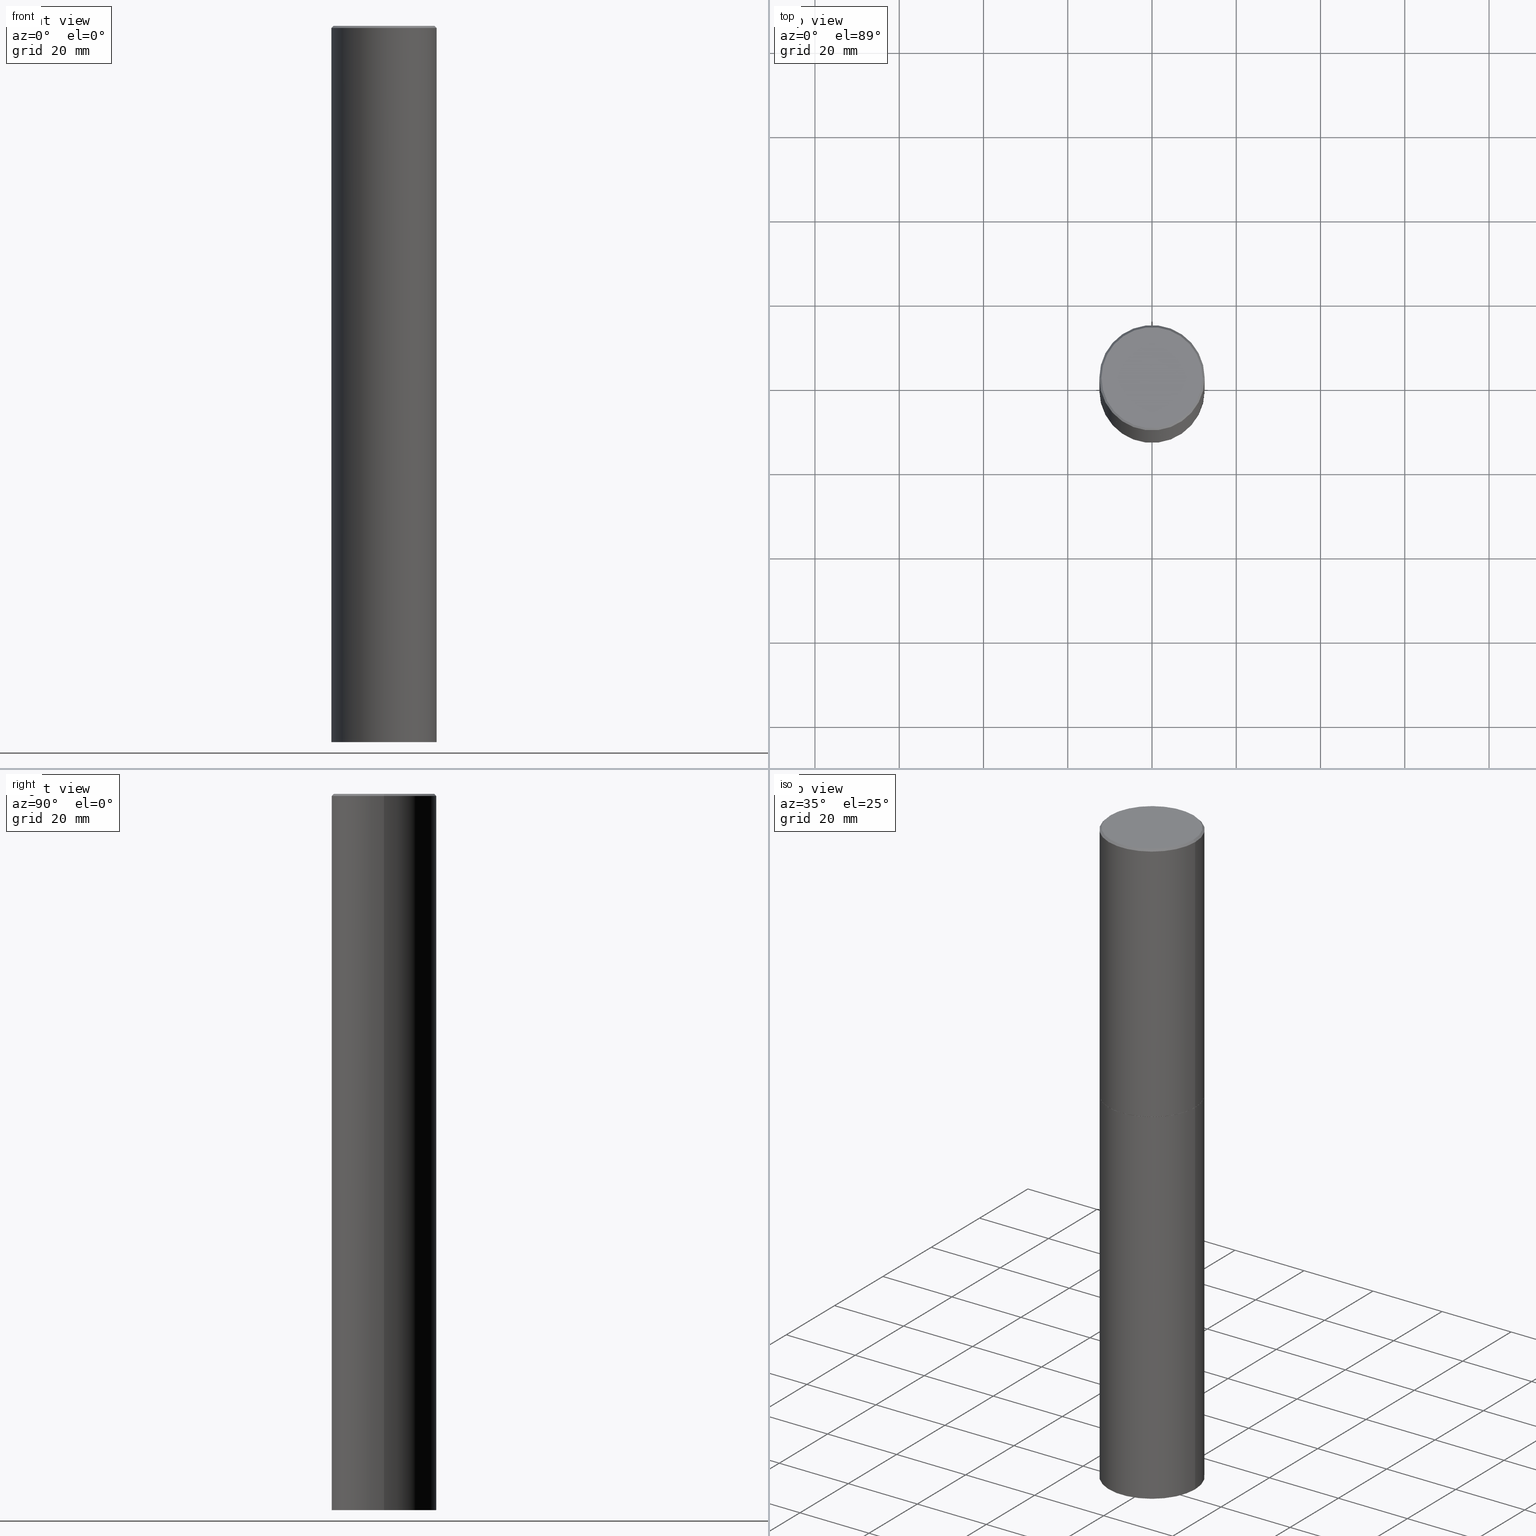
[diagram: canonical four-view strip — front | top / right | iso, engineering-drawing reading convention]
A machine part, canonical four-view strip (front | top / right | iso — engineering-drawing reading convention). The complete STEP part file that produces these views, byte-faithful:
ISO-10303-21;
HEADER;
FILE_DESCRIPTION (( 'STEP AP203' ),
    '1' );
FILE_NAME ('74585.STEP',
    '2024-02-29T13:36:46',
    ( '' ),
    ( '' ),
    'SwSTEP 2.0',
    'SolidWorks 2023',
    '' );
FILE_SCHEMA (( 'CONFIG_CONTROL_DESIGN' ));
ENDSEC;

DATA;
#1 = ADVANCED_FACE ( 'NONE', ( #126 ), #303, .F. ) ;
#2 = DIRECTION ( 'NONE',  ( 1.000000000000000000, -6.982962677686264344E-15, 0.000000000000000000 ) ) ;
#3 = DIRECTION ( 'NONE',  ( 1.000000000000000000, -6.982962677686265922E-15, 4.876176775795936353E-29 ) ) ;
#4 = CARTESIAN_POINT ( 'NONE',  ( -0.4921499999999997543, 3.496936074043331319E-15, -2.420853904668950668E-29 ) ) ;
#5 = EDGE_CURVE ( 'NONE', #61, #298, #357, .T. ) ;
#6 = VECTOR ( 'NONE', #168, 39.37007874015748143 ) ;
#7 = SECURITY_CLASSIFICATION ( '', '', #81 ) ;
#8 = ORIENTED_EDGE ( 'NONE', *, *, #349, .F. ) ;
#9 = CLOSED_SHELL ( 'NONE', ( #77, #251, #157, #356, #302, #65, #113, #250 ) ) ;
#10 = ORIENTED_EDGE ( 'NONE', *, *, #201, .T. ) ;
#11 = CARTESIAN_POINT ( 'NONE',  ( 0.000000000000000000, 0.000000000000000000, 0.000000000000000000 ) ) ;
#12 = ORIENTED_EDGE ( 'NONE', *, *, #275, .T. ) ;
#13 = PRODUCT_DEFINITION ( 'UNKNOWN', '', #42, #60 ) ;
#14 = EDGE_CURVE ( 'NONE', #322, #117, #129, .T. ) ;
#15 = COORDINATED_UNIVERSAL_TIME_OFFSET ( 5, 0, .BEHIND. ) ;
#16 = ORIENTED_EDGE ( 'NONE', *, *, #143, .F. ) ;
#17 = PERSON_AND_ORGANIZATION ( #196, #161 ) ;
#18 = AXIS2_PLACEMENT_3D ( 'NONE', #28, #308, #20 ) ;
#19 = APPLICATION_CONTEXT ( 'configuration controlled 3d designs of mechanical parts and assemblies' ) ;
#20 = DIRECTION ( 'NONE',  ( -1.000000000000000000, 6.982962677686266711E-15, 0.000000000000000000 ) ) ;
#21 = EDGE_CURVE ( 'NONE', #117, #298, #294, .T. ) ;
#22 = DIRECTION ( 'NONE',  ( 1.000000000000000000, -6.982962677686264344E-15, 0.000000000000000000 ) ) ;
#23 = VECTOR ( 'NONE', #312, 39.37007874015748143 ) ;
#24 = CC_DESIGN_APPROVAL ( #271, ( #7 ) ) ;
#25 = DIRECTION ( 'NONE',  ( -2.445468806185136597E-29, 3.491481338843145583E-15, 1.000000000000000000 ) ) ;
#26 = DIRECTION ( 'NONE',  ( -0.7071067811866199593, 7.493145998870616062E-15, 0.7071067811864750752 ) ) ;
#27 = EDGE_CURVE ( 'NONE', #348, #292, #134, .T. ) ;
#28 = CARTESIAN_POINT ( 'NONE',  ( 4.890937612370296805E-31, -6.982962677686323656E-17, -0.02000000000000009409 ) ) ;
#29 = CONICAL_SURFACE ( 'NONE', #18, 0.4921499999999995323, 0.7853981633974456145 ) ;
#30 = MECHANICAL_CONTEXT ( 'NONE', #212, 'mechanical' ) ;
#31 = DATE_TIME_ROLE ( 'classification_date' ) ;
#32 =( CONVERSION_BASED_UNIT ( 'INCH', #263 ) LENGTH_UNIT ( ) NAMED_UNIT ( #243 ) );
#33 = EDGE_CURVE ( 'NONE', #70, #236, #191, .T. ) ;
#34 = APPLICATION_PROTOCOL_DEFINITION ( 'international standard', 'config_control_design', 1994, #19 ) ;
#35 = ORIENTED_EDGE ( 'NONE', *, *, #275, .F. ) ;
#36 = CARTESIAN_POINT ( 'NONE',  ( -2.087702828670439639E-46, 2.980686340760894400E-32, 8.537024980200822558E-18 ) ) ;
#37 = EDGE_LOOP ( 'NONE', ( #64, #205, #176, #351 ) ) ;
#38 = DIRECTION ( 'NONE',  ( -2.445468806185136597E-29, 3.491481338843145583E-15, 1.000000000000000000 ) ) ;
#39 = ORIENTED_EDGE ( 'NONE', *, *, #349, .T. ) ;
#40 = ORIENTED_EDGE ( 'NONE', *, *, #27, .F. ) ;
#41 = AXIS2_PLACEMENT_3D ( 'NONE', #85, #56, #340 ) ;
#42 = PRODUCT_DEFINITION_FORMATION_WITH_SPECIFIED_SOURCE ( 'ANY', '', #197, .NOT_KNOWN. ) ;
#43 = ORIENTED_EDGE ( 'NONE', *, *, #93, .T. ) ;
#44 = DATE_AND_TIME ( #120, #346 ) ;
#45 = CARTESIAN_POINT ( 'NONE',  ( -0.4921499999999995323, 3.366835455046429323E-15, -0.02000000000000009409 ) ) ;
#46 = DATE_AND_TIME ( #305, #136 ) ;
#47 = DIRECTION ( 'NONE',  ( -2.445468806185136597E-29, 3.491481338843145583E-15, 1.000000000000000000 ) ) ;
#48 = AXIS2_PLACEMENT_3D ( 'NONE', #306, #47, #162 ) ;
#49 = PLANE ( 'NONE',  #189 ) ;
#50 = ADVANCED_FACE ( 'NONE', ( #330 ), #72, .T. ) ;
#51 = DIRECTION ( 'NONE',  ( 1.000000000000000000, -6.982962677686265922E-15, 4.876176775795935793E-29 ) ) ;
#52 = PERSON_AND_ORGANIZATION_ROLE ( 'classification_officer' ) ;
#53 = DIRECTION ( 'NONE',  ( -1.000000000000000000, 6.982962677686265922E-15, -4.876176775795935793E-29 ) ) ;
#54 = VECTOR ( 'NONE', #71, 39.37007874015748854 ) ;
#55 = CIRCLE ( 'NONE', #354, 0.4921499999999999764 ) ;
#56 = DIRECTION ( 'NONE',  ( -2.445468806185136597E-29, 3.491481338843145583E-15, 1.000000000000000000 ) ) ;
#57 = LINE ( 'NONE', #194, #339 ) ;
#58 =( NAMED_UNIT ( * ) SI_UNIT ( $, .STERADIAN. ) SOLID_ANGLE_UNIT ( ) );
#59 = ORIENTED_EDGE ( 'NONE', *, *, #268, .F. ) ;
#60 = DESIGN_CONTEXT ( 'detailed design', #19, 'design' ) ;
#61 = VERTEX_POINT ( 'NONE', #249 ) ;
#62 = ORIENTED_EDGE ( 'NONE', *, *, #341, .F. ) ;
#63 = CARTESIAN_POINT ( 'NONE',  ( 0.000000000000000000, 0.000000000000000000, 0.000000000000000000 ) ) ;
#64 = ORIENTED_EDGE ( 'NONE', *, *, #80, .T. ) ;
#65 = ADVANCED_FACE ( 'NONE', ( #211 ), #345, .T. ) ;
#66 = CARTESIAN_POINT ( 'NONE',  ( -0.4921499999999999764, -1.299821836318722399E-14, -2.755900000000000016 ) ) ;
#67 = CARTESIAN_POINT ( 'NONE',  ( 6.739467482965618232E-29, -9.622173421717824390E-15, -2.755900000000000016 ) ) ;
#68 = VECTOR ( 'NONE', #26, 39.37007874015748143 ) ;
#69 = CIRCLE ( 'NONE', #285, 0.4721499999999995700 ) ;
#70 = VERTEX_POINT ( 'NONE', #66 ) ;
#71 = DIRECTION ( 'NONE',  ( 0.7071067811865454633, -7.319954787623246579E-15, -0.7071067811865493491 ) ) ;
#72 = CYLINDRICAL_SURFACE ( 'NONE', #48, 0.4921499999999999764 ) ;
#73 = AXIS2_PLACEMENT_3D ( 'NONE', #199, #202, #132 ) ;
#74 = APPROVAL ( #102, 'UNSPECIFIED' ) ;
#75 = FACE_OUTER_BOUND ( 'NONE', #320, .T. ) ;
#76 = CC_DESIGN_APPROVAL ( #74, ( #13 ) ) ;
#77 = ADVANCED_FACE ( 'NONE', ( #179 ), #245, .T. ) ;
#78 = CARTESIAN_POINT ( 'NONE',  ( 4.890937612370296805E-31, -6.982962677686323656E-17, -0.02000000000000009409 ) ) ;
#79 = LINE ( 'NONE', #195, #68 ) ;
#80 = EDGE_CURVE ( 'NONE', #115, #216, #360, .T. ) ;
#81 = SECURITY_CLASSIFICATION_LEVEL ( 'unclassified' ) ;
#82 = CARTESIAN_POINT ( 'NONE',  ( 6.739467482965618232E-29, -9.622173421717824390E-15, -2.755900000000000016 ) ) ;
#83 = CIRCLE ( 'NONE', #73, 0.4921499999999999764 ) ;
#84 = CIRCLE ( 'NONE', #149, 0.4911499999999999755 ) ;
#85 = CARTESIAN_POINT ( 'NONE',  ( 6.737022014159432629E-29, -9.618681940378981383E-15, -2.754900000000000126 ) ) ;
#86 = CARTESIAN_POINT ( 'NONE',  ( -0.4921499999999995323, 3.366835455046429323E-15, -0.02000000000000009409 ) ) ;
#87 = MANIFOLD_SOLID_BREP ( 'Body-Move/Copy2[1]', #300 ) ;
#88 = EDGE_LOOP ( 'NONE', ( #232, #10, #119, #273 ) ) ;
#89 = LOCAL_TIME ( 8, 36, 46.00000000000000000, #364 ) ;
#90 =( LENGTH_UNIT ( ) NAMED_UNIT ( * ) SI_UNIT ( $, .METRE. ) );
#91 = DIRECTION ( 'NONE',  ( -2.445468806185136597E-29, 3.491481338843145583E-15, 1.000000000000000000 ) ) ;
#92 = ORIENTED_EDGE ( 'NONE', *, *, #33, .T. ) ;
#93 = EDGE_CURVE ( 'NONE', #236, #70, #83, .T. ) ;
#94 = CARTESIAN_POINT ( 'NONE',  ( 4.890937612370296805E-31, -6.982962677686323656E-17, -0.02000000000000009409 ) ) ;
#95 = PERSON_AND_ORGANIZATION ( #196, #161 ) ;
#96 = EDGE_LOOP ( 'NONE', ( #327, #12, #264, #16 ) ) ;
#97 = CARTESIAN_POINT ( 'NONE',  ( 0.4921499999999995323, -3.446223716380119588E-15, -0.02000000000000009409 ) ) ;
#98 = DATE_TIME_ROLE ( 'creation_date' ) ;
#99 = EDGE_LOOP ( 'NONE', ( #269, #39, #344, #178 ) ) ;
#100 = EDGE_CURVE ( 'NONE', #216, #298, #365, .T. ) ;
#101 = AXIS2_PLACEMENT_3D ( 'NONE', #103, #304, #222 ) ;
#102 = APPROVAL_STATUS ( 'not_yet_approved' ) ;
#103 = CARTESIAN_POINT ( 'NONE',  ( 6.739467482965618232E-29, -9.622173421717824390E-15, -2.755900000000000016 ) ) ;
#104 = APPROVAL ( #123, 'UNSPECIFIED' ) ;
#105 = FACE_OUTER_BOUND ( 'NONE', #174, .T. ) ;
#106 = FACE_OUTER_BOUND ( 'NONE', #121, .T. ) ;
#107 = CARTESIAN_POINT ( 'NONE',  ( 0.4921499999999995323, -3.446223716380119588E-15, -0.02000000000000009409 ) ) ;
#108 = DIRECTION ( 'NONE',  ( 0.7071067811866199593, -2.468850131083015945E-15, 0.7071067811864750752 ) ) ;
#109 = DIRECTION ( 'NONE',  ( -1.000000000000000000, 6.982962677686265922E-15, -4.876176775795935793E-29 ) ) ;
#110 = AXIS2_PLACEMENT_3D ( 'NONE', #220, #244, #359 ) ;
#111 = AXIS2_PLACEMENT_3D ( 'NONE', #63, #175, #260 ) ;
#112 = DIRECTION ( 'NONE',  ( -2.445468806185136597E-29, 3.491481338843145583E-15, 1.000000000000000000 ) ) ;
#113 = ADVANCED_FACE ( 'NONE', ( #105 ), #49, .F. ) ;
#114 = CYLINDRICAL_SURFACE ( 'NONE', #229, 0.4921499999999999764 ) ;
#115 = VERTEX_POINT ( 'NONE', #163 ) ;
#116 = FACE_OUTER_BOUND ( 'NONE', #317, .T. ) ;
#117 = VERTEX_POINT ( 'NONE', #107 ) ;
#118 = DIRECTION ( 'NONE',  ( 1.000000000000000000, -6.982962677686265922E-15, 4.876176775795935793E-29 ) ) ;
#119 = ORIENTED_EDGE ( 'NONE', *, *, #217, .T. ) ;
#120 = CALENDAR_DATE ( 2024, 29, 2 ) ;
#121 = EDGE_LOOP ( 'NONE', ( #316, #287 ) ) ;
#122 = AXIS2_PLACEMENT_3D ( 'NONE', #94, #265, #347 ) ;
#123 = APPROVAL_STATUS ( 'not_yet_approved' ) ;
#124 = ORIENTED_EDGE ( 'NONE', *, *, #184, .T. ) ;
#125 = ORIENTED_EDGE ( 'NONE', *, *, #33, .F. ) ;
#126 = FACE_OUTER_BOUND ( 'NONE', #170, .T. ) ;
#127 = AXIS2_PLACEMENT_3D ( 'NONE', #214, #247, #325 ) ;
#128 = APPROVAL_PERSON_ORGANIZATION ( #137, #271, #248 ) ;
#129 = LINE ( 'NONE', #97, #54 ) ;
#130 = ADVANCED_FACE ( 'NONE', ( #75 ), #277, .T. ) ;
#131 = ORIENTED_EDGE ( 'NONE', *, *, #5, .F. ) ;
#132 = DIRECTION ( 'NONE',  ( 1.000000000000000000, -6.982962677686265922E-15, 0.000000000000000000 ) ) ;
#133 = APPROVAL_DATE_TIME ( #192, #271 ) ;
#134 = CIRCLE ( 'NONE', #311, 0.4921499999999999764 ) ;
#135 = DIRECTION ( 'NONE',  ( -2.445468806185136597E-29, 3.491481338843145583E-15, 1.000000000000000000 ) ) ;
#136 = LOCAL_TIME ( 8, 36, 46.00000000000000000, #15 ) ;
#137 = PERSON_AND_ORGANIZATION ( #196, #161 ) ;
#138 = LINE ( 'NONE', #256, #353 ) ;
#139 = PRODUCT_DEFINITION_SHAPE ( 'NONE', 'NONE',  #13 ) ;
#140 = CARTESIAN_POINT ( 'NONE',  ( -0.4921499999999999764, -1.347319709534586880E-15, -2.754900000000000126 ) ) ;
#141 = DIRECTION ( 'NONE',  ( 1.000000000000000000, -6.982962677686266711E-15, 0.000000000000000000 ) ) ;
#142 = AXIS2_PLACEMENT_3D ( 'NONE', #282, #25, #3 ) ;
#143 = EDGE_CURVE ( 'NONE', #292, #236, #193, .T. ) ;
#144 = PRODUCT_RELATED_PRODUCT_CATEGORY ( 'detail', '', ( #197 ) ) ;
#145 = APPROVAL_STATUS ( 'not_yet_approved' ) ;
#146 =( NAMED_UNIT ( * ) PLANE_ANGLE_UNIT ( ) SI_UNIT ( $, .RADIAN. ) );
#147 = CARTESIAN_POINT ( 'NONE',  ( -0.4921499999999999764, -1.299821836318722399E-14, -6.692899999999999849 ) ) ;
#148 = ORIENTED_EDGE ( 'NONE', *, *, #80, .F. ) ;
#149 = AXIS2_PLACEMENT_3D ( 'NONE', #296, #112, #343 ) ;
#150 = DIRECTION ( 'NONE',  ( 1.000000000000000000, -6.982962677686265922E-15, 4.876006802227163537E-29 ) ) ;
#151 = ORIENTED_EDGE ( 'NONE', *, *, #14, .T. ) ;
#152 = DIRECTION ( 'NONE',  ( 1.000000000000000000, -6.982962677686265922E-15, 4.876006802227163537E-29 ) ) ;
#153 = ORIENTED_EDGE ( 'NONE', *, *, #27, .T. ) ;
#154 = ORIENTED_EDGE ( 'NONE', *, *, #210, .T. ) ;
#155 = CC_DESIGN_PERSON_AND_ORGANIZATION_ASSIGNMENT ( #276, #52, ( #7 ) ) ;
#156 = APPROVAL_PERSON_ORGANIZATION ( #17, #74, #299 ) ;
#157 = ADVANCED_FACE ( 'NONE', ( #223 ), #29, .T. ) ;
#158 = VERTEX_POINT ( 'NONE', #230 ) ;
#159 = AXIS2_PLACEMENT_3D ( 'NONE', #255, #257, #2 ) ;
#160 = PERSON_AND_ORGANIZATION_ROLE ( 'design_supplier' ) ;
#161 = ORGANIZATION ( 'UNSPECIFIED', 'UNSPECIFIED', '' ) ;
#162 = DIRECTION ( 'NONE',  ( 1.000000000000000000, -6.982962677686265922E-15, 4.876176775795935793E-29 ) ) ;
#163 = CARTESIAN_POINT ( 'NONE',  ( 0.4921499999999999764, -1.305534702220227716E-14, -2.754900000000000126 ) ) ;
#164 = DIRECTION ( 'NONE',  ( -2.445468806185136597E-29, 3.491481338843145583E-15, 1.000000000000000000 ) ) ;
#165 = COORDINATED_UNIVERSAL_TIME_OFFSET ( 5, 0, .BEHIND. ) ;
#166 = VECTOR ( 'NONE', #328, 39.37007874015748854 ) ;
#167 = FACE_OUTER_BOUND ( 'NONE', #37, .T. ) ;
#168 = DIRECTION ( 'NONE',  ( -2.445468806185136877E-29, 3.491481338843145188E-15, 1.000000000000000000 ) ) ;
#169 = CYLINDRICAL_SURFACE ( 'NONE', #142, 0.4921499999999997543 ) ;
#170 = EDGE_LOOP ( 'NONE', ( #43, #92 ) ) ;
#171 = CARTESIAN_POINT ( 'NONE',  ( 0.4921499999999999764, -2.680480053456658516E-14, -6.692899999999999849 ) ) ;
#172 = ORIENTED_EDGE ( 'NONE', *, *, #143, .T. ) ;
#173 = FACE_OUTER_BOUND ( 'NONE', #88, .T. ) ;
#174 = EDGE_LOOP ( 'NONE', ( #261, #8 ) ) ;
#175 = DIRECTION ( 'NONE',  ( 0.000000000000000000, 0.000000000000000000, 1.000000000000000000 ) ) ;
#176 = ORIENTED_EDGE ( 'NONE', *, *, #21, .F. ) ;
#177 = CONICAL_SURFACE ( 'NONE', #122, 0.4921499999999995323, 0.7853981633974456145 ) ;
#178 = ORIENTED_EDGE ( 'NONE', *, *, #201, .F. ) ;
#179 = FACE_OUTER_BOUND ( 'NONE', #290, .T. ) ;
#180 = EDGE_CURVE ( 'NONE', #158, #358, #218, .T. ) ;
#181 = PERSON_AND_ORGANIZATION_ROLE ( 'creator' ) ;
#182 = DIRECTION ( 'NONE',  ( 1.000000000000000000, -6.982962677686264344E-15, 0.000000000000000000 ) ) ;
#183 = COORDINATED_UNIVERSAL_TIME_OFFSET ( 5, 0, .BEHIND. ) ;
#184 = EDGE_CURVE ( 'NONE', #298, #117, #333, .T. ) ;
#185 = PERSON_AND_ORGANIZATION ( #196, #161 ) ;
#186 = DIRECTION ( 'NONE',  ( 1.000000000000000000, -6.982962677686265922E-15, 0.000000000000000000 ) ) ;
#187 = COORDINATED_UNIVERSAL_TIME_OFFSET ( 5, 0, .BEHIND. ) ;
#188 = UNCERTAINTY_MEASURE_WITH_UNIT (LENGTH_MEASURE( 1.000000000000000082E-05 ), #32, 'distance_accuracy_value', 'NONE');
#189 = AXIS2_PLACEMENT_3D ( 'NONE', #82, #284, #51 ) ;
#190 = ADVANCED_BREP_SHAPE_REPRESENTATION ( '74585', ( #87, #215, #111 ), #200 ) ;
#191 = CIRCLE ( 'NONE', #101, 0.4921499999999999764 ) ;
#192 = DATE_AND_TIME ( #262, #259 ) ;
#193 = LINE ( 'NONE', #227, #6 ) ;
#194 = CARTESIAN_POINT ( 'NONE',  ( 0.4921499999999997543, -3.436665081823294199E-15, 2.399810400207968762E-29 ) ) ;
#195 = CARTESIAN_POINT ( 'NONE',  ( -0.4911499999999999755, -6.132342775032092501E-15, -2.755900000000000016 ) ) ;
#196 = PERSON ( 'UNSPECIFIED', 'UNSPECIFIED', 'UNSPECIFIED', ('UNSPECIFIED'), ('UNSPECIFIED'), ('UNSPECIFIED') ) ;
#197 = PRODUCT ( '74585', '74585', '', ( #30 ) ) ;
#198 = CALENDAR_DATE ( 2024, 29, 2 ) ;
#199 = CARTESIAN_POINT ( 'NONE',  ( 6.739467482965618232E-29, -9.622173421717824390E-15, -2.755900000000000016 ) ) ;
#200 =( GEOMETRIC_REPRESENTATION_CONTEXT ( 3 ) GLOBAL_UNCERTAINTY_ASSIGNED_CONTEXT ( ( #188 ) ) GLOBAL_UNIT_ASSIGNED_CONTEXT ( ( #32, #146, #58 ) ) REPRESENTATION_CONTEXT ( 'NONE', 'WORKASPACE' ) );
#201 = EDGE_CURVE ( 'NONE', #216, #115, #307, .T. ) ;
#202 = DIRECTION ( 'NONE',  ( -2.445468806185136597E-29, 3.491481338843145583E-15, 1.000000000000000000 ) ) ;
#203 = DIRECTION ( 'NONE',  ( 1.000000000000000000, -6.982962677686265922E-15, 4.876176775795936353E-29 ) ) ;
#204 = AXIS2_PLACEMENT_3D ( 'NONE', #67, #323, #182 ) ;
#205 = ORIENTED_EDGE ( 'NONE', *, *, #100, .T. ) ;
#206 = DIRECTION ( 'NONE',  ( 1.000000000000000000, -6.982962677686265922E-15, 0.000000000000000000 ) ) ;
#207 = ORIENTED_EDGE ( 'NONE', *, *, #180, .T. ) ;
#208 = CARTESIAN_POINT ( 'NONE',  ( 0.4721499999999995700, -3.342703923013973002E-15, 8.537024980224040028E-18 ) ) ;
#209 = CC_DESIGN_DATE_AND_TIME_ASSIGNMENT ( #46, #98, ( #13 ) ) ;
#210 = EDGE_CURVE ( 'NONE', #358, #216, #79, .T. ) ;
#211 = FACE_OUTER_BOUND ( 'NONE', #99, .T. ) ;
#212 = APPLICATION_CONTEXT ( 'configuration controlled 3d designs of mechanical parts and assemblies' ) ;
#213 = CALENDAR_DATE ( 2024, 29, 2 ) ;
#214 = CARTESIAN_POINT ( 'NONE',  ( 4.890937612370296805E-31, -6.982962677686323656E-17, -0.02000000000000009409 ) ) ;
#215 = MANIFOLD_SOLID_BREP ( 'Body-Move/Copy2[2]', #9 ) ;
#216 = VERTEX_POINT ( 'NONE', #140 ) ;
#217 = EDGE_CURVE ( 'NONE', #115, #117, #57, .T. ) ;
#218 = CIRCLE ( 'NONE', #352, 0.4911499999999999755 ) ;
#219 = PERSON_AND_ORGANIZATION_ROLE ( 'creator' ) ;
#220 = CARTESIAN_POINT ( 'NONE',  ( 3.436665081823363224E-15, 0.4921499999999903174, -2.755900000000001793 ) ) ;
#221 = DATE_AND_TIME ( #213, #254 ) ;
#222 = DIRECTION ( 'NONE',  ( 1.000000000000000000, -6.982962677686265922E-15, 0.000000000000000000 ) ) ;
#223 = FACE_OUTER_BOUND ( 'NONE', #355, .T. ) ;
#224 = AXIS2_PLACEMENT_3D ( 'NONE', #237, #314, #152 ) ;
#225 = CC_DESIGN_PERSON_AND_ORGANIZATION_ASSIGNMENT ( #95, #160, ( #42 ) ) ;
#226 = PLANE ( 'NONE',  #279 ) ;
#227 = CARTESIAN_POINT ( 'NONE',  ( 0.4921499999999999764, -3.436665081823295777E-15, 2.399810400207969603E-29 ) ) ;
#228 = LINE ( 'NONE', #338, #242 ) ;
#229 = AXIS2_PLACEMENT_3D ( 'NONE', #267, #91, #118 ) ;
#230 = CARTESIAN_POINT ( 'NONE',  ( 0.4911499999999999755, -1.305185554086343257E-14, -2.755900000000000016 ) ) ;
#231 = CYLINDRICAL_SURFACE ( 'NONE', #301, 0.4921499999999997543 ) ;
#232 = ORIENTED_EDGE ( 'NONE', *, *, #100, .F. ) ;
#233 = CARTESIAN_POINT ( 'NONE',  ( 1.636727817291649966E-28, -2.336813545274328780E-14, -6.692899999999999849 ) ) ;
#234 = AXIS2_PLACEMENT_3D ( 'NONE', #252, #164, #283 ) ;
#235 = APPROVAL_PERSON_ORGANIZATION ( #246, #104, #326 ) ;
#236 = VERTEX_POINT ( 'NONE', #334 ) ;
#237 = CARTESIAN_POINT ( 'NONE',  ( -2.087702828670439639E-46, 2.980686340760894400E-32, 8.537024980200822558E-18 ) ) ;
#238 = DIRECTION ( 'NONE',  ( -2.445468806185136597E-29, 3.491481338843145583E-15, 1.000000000000000000 ) ) ;
#239 = CC_DESIGN_PERSON_AND_ORGANIZATION_ASSIGNMENT ( #324, #181, ( #13 ) ) ;
#240 = APPROVAL_DATE_TIME ( #44, #104 ) ;
#241 = ORIENTED_EDGE ( 'NONE', *, *, #329, .F. ) ;
#242 = VECTOR ( 'NONE', #293, 39.37007874015748143 ) ;
#243 = DIMENSIONAL_EXPONENTS ( 1.000000000000000000, 0.000000000000000000, 0.000000000000000000, 0.000000000000000000, 0.000000000000000000, 0.000000000000000000, 0.000000000000000000 ) ;
#244 = DIRECTION ( 'NONE',  ( 2.438088387897960049E-29, -3.491481338843145188E-15, -1.000000000000000000 ) ) ;
#245 = CONICAL_SURFACE ( 'NONE', #159, 0.4911499999999999755, 0.7853981633975507526 ) ;
#246 = PERSON_AND_ORGANIZATION ( #196, #161 ) ;
#247 = DIRECTION ( 'NONE',  ( -2.445468806185136597E-29, 3.491481338843145583E-15, 1.000000000000000000 ) ) ;
#248 = APPROVAL_ROLE ( '' ) ;
#249 = CARTESIAN_POINT ( 'NONE',  ( -0.4721499999999995700, 3.331920641657998857E-15, 8.537024980177643606E-18 ) ) ;
#250 = ADVANCED_FACE ( 'NONE', ( #106 ), #226, .F. ) ;
#251 = ADVANCED_FACE ( 'NONE', ( #167 ), #169, .T. ) ;
#252 = CARTESIAN_POINT ( 'NONE',  ( 6.737022014159432629E-29, -9.618681940378981383E-15, -2.754900000000000126 ) ) ;
#253 = AXIS2_PLACEMENT_3D ( 'NONE', #313, #332, #109 ) ;
#254 = LOCAL_TIME ( 8, 36, 46.00000000000000000, #187 ) ;
#255 = CARTESIAN_POINT ( 'NONE',  ( 6.739467482965618232E-29, -9.622173421717824390E-15, -2.755900000000000016 ) ) ;
#256 = CARTESIAN_POINT ( 'NONE',  ( 0.4911499999999999755, -1.305185554086343257E-14, -2.755900000000000016 ) ) ;
#257 = DIRECTION ( 'NONE',  ( -2.445468806185136597E-29, 3.491481338843145583E-15, 1.000000000000000000 ) ) ;
#258 = DIRECTION ( 'NONE',  ( -2.445468806185136877E-29, 3.491481338843145188E-15, 1.000000000000000000 ) ) ;
#259 = LOCAL_TIME ( 8, 36, 46.00000000000000000, #165 ) ;
#260 = DIRECTION ( 'NONE',  ( 1.000000000000000000, 0.000000000000000000, 0.000000000000000000 ) ) ;
#261 = ORIENTED_EDGE ( 'NONE', *, *, #180, .F. ) ;
#262 = CALENDAR_DATE ( 2024, 29, 2 ) ;
#263 = LENGTH_MEASURE_WITH_UNIT ( LENGTH_MEASURE( 0.02539999999999999897 ), #90 );
#264 = ORIENTED_EDGE ( 'NONE', *, *, #93, .F. ) ;
#265 = DIRECTION ( 'NONE',  ( 2.445468806185136597E-29, -3.491481338843145583E-15, -1.000000000000000000 ) ) ;
#266 = ORIENTED_EDGE ( 'NONE', *, *, #361, .F. ) ;
#267 = CARTESIAN_POINT ( 'NONE',  ( 0.000000000000000000, 0.000000000000000000, 0.000000000000000000 ) ) ;
#268 = EDGE_CURVE ( 'NONE', #158, #115, #138, .T. ) ;
#269 = ORIENTED_EDGE ( 'NONE', *, *, #210, .F. ) ;
#270 = APPROVAL_DATE_TIME ( #221, #74 ) ;
#271 = APPROVAL ( #145, 'UNSPECIFIED' ) ;
#272 = EDGE_LOOP ( 'NONE', ( #297, #241, #295, #124 ) ) ;
#273 = ORIENTED_EDGE ( 'NONE', *, *, #184, .F. ) ;
#274 = CC_DESIGN_APPROVAL ( #104, ( #42 ) ) ;
#275 = EDGE_CURVE ( 'NONE', #348, #70, #228, .T. ) ;
#276 = PERSON_AND_ORGANIZATION ( #196, #161 ) ;
#277 = PLANE ( 'NONE',  #253 ) ;
#278 = CARTESIAN_POINT ( 'NONE',  ( 6.739467482965618232E-29, -9.622173421717824390E-15, -2.755900000000000016 ) ) ;
#279 = AXIS2_PLACEMENT_3D ( 'NONE', #310, #309, #53 ) ;
#280 = CC_DESIGN_SECURITY_CLASSIFICATION ( #7, ( #42 ) ) ;
#281 = ADVANCED_FACE ( 'NONE', ( #116 ), #114, .T. ) ;
#282 = CARTESIAN_POINT ( 'NONE',  ( 0.000000000000000000, 0.000000000000000000, 0.000000000000000000 ) ) ;
#283 = DIRECTION ( 'NONE',  ( 1.000000000000000000, -6.982962677686265922E-15, 0.000000000000000000 ) ) ;
#284 = DIRECTION ( 'NONE',  ( -2.438088387897960049E-29, 3.491481338843145188E-15, 1.000000000000000000 ) ) ;
#285 = AXIS2_PLACEMENT_3D ( 'NONE', #36, #289, #150 ) ;
#286 = APPLICATION_PROTOCOL_DEFINITION ( 'international standard', 'config_control_design', 1994, #212 ) ;
#287 = ORIENTED_EDGE ( 'NONE', *, *, #361, .T. ) ;
#288 = CC_DESIGN_PERSON_AND_ORGANIZATION_ASSIGNMENT ( #185, #219, ( #42 ) ) ;
#289 = DIRECTION ( 'NONE',  ( -2.445468806185136597E-29, 3.491481338843145583E-15, 1.000000000000000000 ) ) ;
#290 = EDGE_LOOP ( 'NONE', ( #207, #154, #148, #59 ) ) ;
#291 = PERSON_AND_ORGANIZATION ( #196, #161 ) ;
#292 = VERTEX_POINT ( 'NONE', #171 ) ;
#293 = DIRECTION ( 'NONE',  ( -2.445468806185136877E-29, 3.491481338843145188E-15, 1.000000000000000000 ) ) ;
#294 = CIRCLE ( 'NONE', #127, 0.4921499999999995323 ) ;
#295 = ORIENTED_EDGE ( 'NONE', *, *, #5, .T. ) ;
#296 = CARTESIAN_POINT ( 'NONE',  ( 6.739467482965618232E-29, -9.622173421717824390E-15, -2.755900000000000016 ) ) ;
#297 = ORIENTED_EDGE ( 'NONE', *, *, #14, .F. ) ;
#298 = VERTEX_POINT ( 'NONE', #86 ) ;
#299 = APPROVAL_ROLE ( '' ) ;
#300 = CLOSED_SHELL ( 'NONE', ( #50, #130, #1, #281 ) ) ;
#301 = AXIS2_PLACEMENT_3D ( 'NONE', #11, #38, #203 ) ;
#302 = ADVANCED_FACE ( 'NONE', ( #173 ), #231, .T. ) ;
#303 = PLANE ( 'NONE',  #110 ) ;
#304 = DIRECTION ( 'NONE',  ( -2.445468806185136597E-29, 3.491481338843145583E-15, 1.000000000000000000 ) ) ;
#305 = CALENDAR_DATE ( 2024, 29, 2 ) ;
#306 = CARTESIAN_POINT ( 'NONE',  ( 0.000000000000000000, 0.000000000000000000, 0.000000000000000000 ) ) ;
#307 = CIRCLE ( 'NONE', #234, 0.4921499999999999764 ) ;
#308 = DIRECTION ( 'NONE',  ( 2.445468806185136597E-29, -3.491481338843145583E-15, -1.000000000000000000 ) ) ;
#309 = DIRECTION ( 'NONE',  ( 2.438088387897960049E-29, -3.491481338843145188E-15, -1.000000000000000000 ) ) ;
#310 = CARTESIAN_POINT ( 'NONE',  ( 3.297005828269567603E-15, 0.4721499999999995700, -1.644234401644689291E-15 ) ) ;
#311 = AXIS2_PLACEMENT_3D ( 'NONE', #363, #362, #186 ) ;
#312 = DIRECTION ( 'NONE',  ( -2.445468806185136877E-29, 3.491481338843145188E-15, 1.000000000000000000 ) ) ;
#313 = CARTESIAN_POINT ( 'NONE',  ( 3.436665081823459465E-15, 0.4921499999999766062, -6.692900000000002514 ) ) ;
#314 = DIRECTION ( 'NONE',  ( -2.445468806185136597E-29, 3.491481338843145583E-15, 1.000000000000000000 ) ) ;
#315 = CC_DESIGN_PERSON_AND_ORGANIZATION_ASSIGNMENT ( #291, #318, ( #197 ) ) ;
#316 = ORIENTED_EDGE ( 'NONE', *, *, #329, .T. ) ;
#317 = EDGE_LOOP ( 'NONE', ( #35, #153, #172, #125 ) ) ;
#318 = PERSON_AND_ORGANIZATION_ROLE ( 'design_owner' ) ;
#319 = ORIENTED_EDGE ( 'NONE', *, *, #21, .T. ) ;
#320 = EDGE_LOOP ( 'NONE', ( #62, #40 ) ) ;
#321 = AXIS2_PLACEMENT_3D ( 'NONE', #78, #135, #141 ) ;
#322 = VERTEX_POINT ( 'NONE', #208 ) ;
#323 = DIRECTION ( 'NONE',  ( -2.445468806185136597E-29, 3.491481338843145583E-15, 1.000000000000000000 ) ) ;
#324 = PERSON_AND_ORGANIZATION ( #196, #161 ) ;
#325 = DIRECTION ( 'NONE',  ( 1.000000000000000000, -6.982962677686266711E-15, 0.000000000000000000 ) ) ;
#326 = APPROVAL_ROLE ( '' ) ;
#327 = ORIENTED_EDGE ( 'NONE', *, *, #341, .T. ) ;
#328 = DIRECTION ( 'NONE',  ( -0.7071067811865454633, 2.468850131082235761E-15, -0.7071067811865493491 ) ) ;
#329 = EDGE_CURVE ( 'NONE', #61, #322, #366, .T. ) ;
#330 = FACE_OUTER_BOUND ( 'NONE', #96, .T. ) ;
#331 = SHAPE_DEFINITION_REPRESENTATION ( #139, #190 ) ;
#332 = DIRECTION ( 'NONE',  ( 2.438088387897960049E-29, -3.491481338843145188E-15, -1.000000000000000000 ) ) ;
#333 = CIRCLE ( 'NONE', #321, 0.4921499999999995323 ) ;
#334 = CARTESIAN_POINT ( 'NONE',  ( 0.4921499999999999764, -1.305883850354112017E-14, -2.755900000000000016 ) ) ;
#335 = DATE_AND_TIME ( #198, #89 ) ;
#336 = DIRECTION ( 'NONE',  ( -2.445468806185136597E-29, 3.491481338843145583E-15, 1.000000000000000000 ) ) ;
#337 = CC_DESIGN_DATE_AND_TIME_ASSIGNMENT ( #335, #31, ( #7 ) ) ;
#338 = CARTESIAN_POINT ( 'NONE',  ( -0.4921499999999999764, 3.496936074043332897E-15, -2.420853904668951509E-29 ) ) ;
#339 = VECTOR ( 'NONE', #258, 39.37007874015748143 ) ;
#340 = DIRECTION ( 'NONE',  ( 1.000000000000000000, -6.982962677686265922E-15, 0.000000000000000000 ) ) ;
#341 = EDGE_CURVE ( 'NONE', #292, #348, #55, .T. ) ;
#342 = CARTESIAN_POINT ( 'NONE',  ( -0.4911499999999999755, -6.127044320683870099E-15, -2.755900000000000016 ) ) ;
#343 = DIRECTION ( 'NONE',  ( 1.000000000000000000, -6.982962677686264344E-15, 0.000000000000000000 ) ) ;
#344 = ORIENTED_EDGE ( 'NONE', *, *, #268, .T. ) ;
#345 = CONICAL_SURFACE ( 'NONE', #204, 0.4911499999999999755, 0.7853981633975507526 ) ;
#346 = LOCAL_TIME ( 8, 36, 46.00000000000000000, #183 ) ;
#347 = DIRECTION ( 'NONE',  ( -1.000000000000000000, 6.982962677686266711E-15, 0.000000000000000000 ) ) ;
#348 = VERTEX_POINT ( 'NONE', #147 ) ;
#349 = EDGE_CURVE ( 'NONE', #358, #158, #84, .T. ) ;
#350 = FACE_OUTER_BOUND ( 'NONE', #272, .T. ) ;
#351 = ORIENTED_EDGE ( 'NONE', *, *, #217, .F. ) ;
#352 = AXIS2_PLACEMENT_3D ( 'NONE', #278, #336, #22 ) ;
#353 = VECTOR ( 'NONE', #108, 39.37007874015748143 ) ;
#354 = AXIS2_PLACEMENT_3D ( 'NONE', #233, #238, #206 ) ;
#355 = EDGE_LOOP ( 'NONE', ( #266, #151, #319, #131 ) ) ;
#356 = ADVANCED_FACE ( 'NONE', ( #350 ), #177, .T. ) ;
#357 = LINE ( 'NONE', #45, #166 ) ;
#358 = VERTEX_POINT ( 'NONE', #342 ) ;
#359 = DIRECTION ( 'NONE',  ( -1.000000000000000000, 6.982962677686265922E-15, -4.876176775795935793E-29 ) ) ;
#360 = CIRCLE ( 'NONE', #41, 0.4921499999999999764 ) ;
#361 = EDGE_CURVE ( 'NONE', #322, #61, #69, .T. ) ;
#362 = DIRECTION ( 'NONE',  ( -2.445468806185136597E-29, 3.491481338843145583E-15, 1.000000000000000000 ) ) ;
#363 = CARTESIAN_POINT ( 'NONE',  ( 1.636727817291649966E-28, -2.336813545274328780E-14, -6.692899999999999849 ) ) ;
#364 = COORDINATED_UNIVERSAL_TIME_OFFSET ( 5, 0, .BEHIND. ) ;
#365 = LINE ( 'NONE', #4, #23 ) ;
#366 = CIRCLE ( 'NONE', #224, 0.4721499999999995700 ) ;
ENDSEC;
END-ISO-10303-21;
